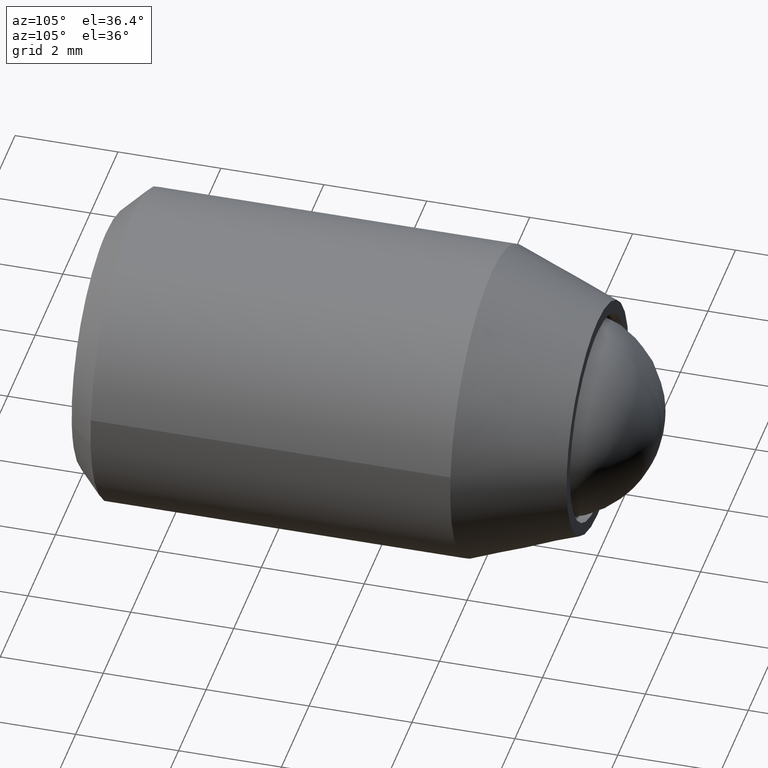
[diagram: clean part render]
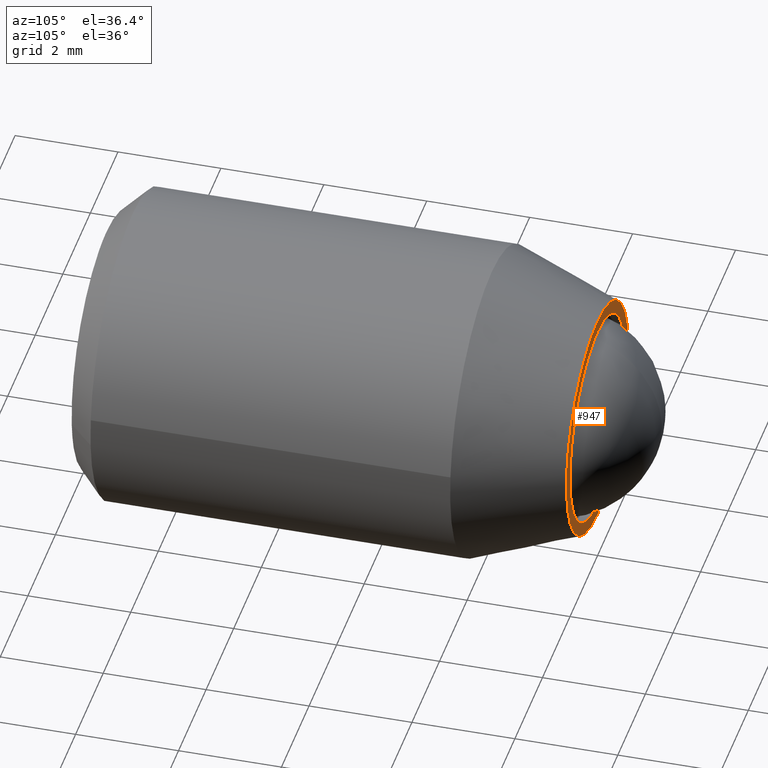
[diagram: same view with one face highlighted and labeled with its STEP entity id]
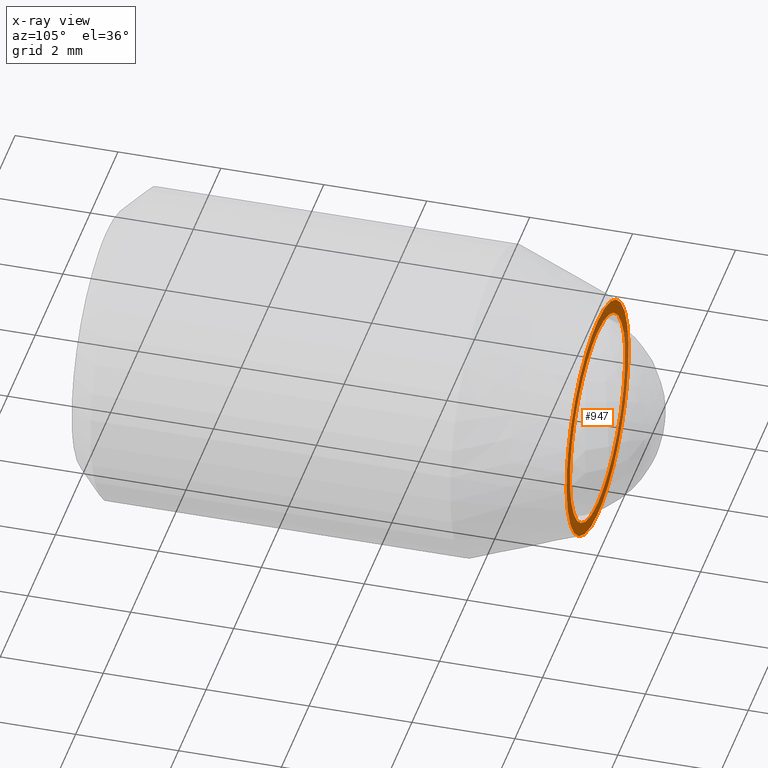
[diagram: x-ray of the same camera — body ghosted, the highlighted face saturated]
A machine part, auxiliary view. The second image highlights one B-rep face of the part: STEP entity #947.
The next image is the same camera in x-ray: the body ghosted, the highlighted face saturated — about 29% of this face is hidden behind the body in this view.
In plain terms, the highlighted face is a freeform B-spline surface patch.
Its self-contained STEP definition (entity closure, byte-faithful):
#104=CARTESIAN_POINT('',(1.996269777641058,-9.020562E-017,-0.122094122987751));
#105=VERTEX_POINT('',#104);
#111=CARTESIAN_POINT('',(0.0,0.0,-2.0));
#112=VERTEX_POINT('',#111);
#113=CARTESIAN_POINT('',(0.0,0.0,-2.0));
#114=CARTESIAN_POINT('',(1.881414925019934,0.0,-2.000000000000000));
#115=CARTESIAN_POINT('',(1.996269777641058,-9.020562E-017,-0.122094122987751));
#123=(BOUNDED_CURVE()B_SPLINE_CURVE(2,(#113,#114,#115),.UNSPECIFIED.,.F.,.U.)B_SPLINE_CURVE_WITH_KNOTS((3,3),(0.500000000000000,0.739333217749817),.UNSPECIFIED.)CURVE()GEOMETRIC_REPRESENTATION_ITEM()RATIONAL_B_SPLINE_CURVE((1.0,0.719603693937101,0.976072589275771))REPRESENTATION_ITEM(''));
#124=EDGE_CURVE('',#112,#105,#123,.T.);
#126=CARTESIAN_POINT('',(-1.986019104141868,-8.518285E-017,0.236068036767671));
#127=VERTEX_POINT('',#126);
#128=CARTESIAN_POINT('',(-1.986019104141868,-8.518285E-017,0.236068036767671));
#129=CARTESIAN_POINT('',(-2.0,0.0,0.118447802185172));
#130=CARTESIAN_POINT('',(-2.0,0.0,0.0));
#131=CARTESIAN_POINT('',(-2.000000000000000,0.0,-2.000000000000000));
#132=CARTESIAN_POINT('',(0.0,0.0,-2.0));
#140=(BOUNDED_CURVE()B_SPLINE_CURVE(2,(#128,#129,#130,#131,#132),.UNSPECIFIED.,.F.,.U.)B_SPLINE_CURVE_WITH_KNOTS((3,2,3),(0.229562547131914,0.250000000000000,0.500000000000000),.UNSPECIFIED.)CURVE()GEOMETRIC_REPRESENTATION_ITEM()RATIONAL_B_SPLINE_CURVE((0.956026898478838,0.976056034580473,1.0,0.707106781186548,1.0))REPRESENTATION_ITEM(''));
#141=EDGE_CURVE('',#127,#112,#140,.T.);
#185=CARTESIAN_POINT('',(0.0,0.0,2.0));
#186=VERTEX_POINT('',#185);
#187=CARTESIAN_POINT('',(0.0,0.0,2.0));
#188=CARTESIAN_POINT('',(-1.776349831111262,0.0,2.000000000000000));
#189=CARTESIAN_POINT('',(-1.986019104141868,-8.518285E-017,0.236068036767672));
#197=(BOUNDED_CURVE()B_SPLINE_CURVE(2,(#187,#188,#189),.UNSPECIFIED.,.F.,.U.)B_SPLINE_CURVE_WITH_KNOTS((3,3),(0.0,0.229562547131914),.UNSPECIFIED.)CURVE()GEOMETRIC_REPRESENTATION_ITEM()RATIONAL_B_SPLINE_CURVE((1.0,0.731050746606075,0.956026898478838))REPRESENTATION_ITEM(''));
#198=EDGE_CURVE('',#186,#127,#197,.T.);
#200=CARTESIAN_POINT('',(1.996269777641058,-9.020562E-017,-0.122094122987751));
#201=CARTESIAN_POINT('',(2.000000000000000,0.0,-0.061104044412081));
#202=CARTESIAN_POINT('',(2.0,0.0,0.0));
#203=CARTESIAN_POINT('',(2.000000000000000,0.0,2.000000000000000));
#204=CARTESIAN_POINT('',(0.0,0.0,2.0));
#212=(BOUNDED_CURVE()B_SPLINE_CURVE(2,(#200,#201,#202,#203,#204),.UNSPECIFIED.,.F.,.U.)B_SPLINE_CURVE_WITH_KNOTS((3,2,3),(0.739333217749817,0.750000000000000,1.0),.UNSPECIFIED.)CURVE()GEOMETRIC_REPRESENTATION_ITEM()RATIONAL_B_SPLINE_CURVE((0.976072589275771,0.987503087249447,1.0,0.707106781186548,1.0))REPRESENTATION_ITEM(''));
#213=EDGE_CURVE('',#105,#186,#212,.T.);
#260=CARTESIAN_POINT('',(-1.824690539183465,-1.269605E-013,-1.316436263635491));
#261=VERTEX_POINT('',#260);
#262=CARTESIAN_POINT('',(0.0,0.0,-2.250000000000001));
#263=VERTEX_POINT('',#262);
#264=CARTESIAN_POINT('',(-1.824690539183464,-1.269605E-013,-1.316436263635491));
#265=CARTESIAN_POINT('',(-1.151164190152913,0.0,-2.250000000000000));
#266=CARTESIAN_POINT('',(0.0,0.0,-2.250000000000001));
#274=(BOUNDED_CURVE()B_SPLINE_CURVE(2,(#264,#265,#266),.UNSPECIFIED.,.F.,.U.)B_SPLINE_CURVE_WITH_KNOTS((3,3),(0.850743050382167,1.0),.UNSPECIFIED.)CURVE()GEOMETRIC_REPRESENTATION_ITEM()RATIONAL_B_SPLINE_CURVE((0.859068214727268,0.825134606384623,1.0))REPRESENTATION_ITEM(''));
#275=EDGE_CURVE('',#261,#263,#274,.T.);
#277=CARTESIAN_POINT('',(0.0,0.0,2.249999999999999));
#278=VERTEX_POINT('',#277);
#279=CARTESIAN_POINT('',(0.0,0.0,-2.250000000000001));
#280=CARTESIAN_POINT('',(2.250000000000000,0.0,-2.250000000000000));
#281=CARTESIAN_POINT('',(2.250000000000000,0.0,-6.765950E-016));
#282=CARTESIAN_POINT('',(2.250000000000000,0.0,2.249999999999999));
#283=CARTESIAN_POINT('',(0.0,0.0,2.249999999999999));
#291=(BOUNDED_CURVE()B_SPLINE_CURVE(2,(#279,#280,#281,#282,#283),.UNSPECIFIED.,.F.,.U.)B_SPLINE_CURVE_WITH_KNOTS((3,2,3),(0.0,0.250000000000000,0.500000000000000),.UNSPECIFIED.)CURVE()GEOMETRIC_REPRESENTATION_ITEM()RATIONAL_B_SPLINE_CURVE((1.0,0.707106781186547,1.0,0.707106781186547,1.0))REPRESENTATION_ITEM(''));
#292=EDGE_CURVE('',#263,#278,#291,.T.);
#294=CARTESIAN_POINT('',(-2.245803296449229,-8.940522E-013,0.137359213958318));
#295=VERTEX_POINT('',#294);
#296=CARTESIAN_POINT('',(0.0,0.0,2.249999999999999));
#297=CARTESIAN_POINT('',(-2.116588650528630,0.0,2.250000000000000));
#298=CARTESIAN_POINT('',(-2.245803296449229,-8.940522E-013,0.137359213958318));
#306=(BOUNDED_CURVE()B_SPLINE_CURVE(2,(#296,#297,#298),.UNSPECIFIED.,.F.,.U.)B_SPLINE_CURVE_WITH_KNOTS((3,3),(0.500000000000000,0.739332962241221),.UNSPECIFIED.)CURVE()GEOMETRIC_REPRESENTATION_ITEM()RATIONAL_B_SPLINE_CURVE((1.0,0.719603993284041,0.976072041671600))REPRESENTATION_ITEM(''));
#307=EDGE_CURVE('',#278,#295,#306,.T.);
#400=CARTESIAN_POINT('',(-2.245803296449229,-8.940522E-013,0.137359213958318));
#401=CARTESIAN_POINT('',(-2.250000000000001,0.0,0.068743717426708));
#402=CARTESIAN_POINT('',(-2.250000000000000,0.0,-6.765950E-016));
#403=CARTESIAN_POINT('',(-2.250000000000000,0.0,-0.726921852027605));
#404=CARTESIAN_POINT('',(-1.824690539183465,-1.269605E-013,-1.316436263635491));
#412=(BOUNDED_CURVE()B_SPLINE_CURVE(2,(#400,#401,#402,#403,#404),.UNSPECIFIED.,.F.,.U.)B_SPLINE_CURVE_WITH_KNOTS((3,2,3),(0.739332962241220,0.750000000000000,0.850743050382166),.UNSPECIFIED.)CURVE()GEOMETRIC_REPRESENTATION_ITEM()RATIONAL_B_SPLINE_CURVE((0.976072041671598,0.987502787902505,1.0,0.881972174801926,0.859068214727269))REPRESENTATION_ITEM(''));
#413=EDGE_CURVE('',#295,#261,#412,.T.);
#930=CARTESIAN_POINT('',(-2.474708163199642,0.0,-2.474774991278128));
#931=CARTESIAN_POINT('',(-2.474708163199642,0.0,2.474775111977531));
#932=CARTESIAN_POINT('',(2.474771932718971,0.0,-2.474774991278128));
#933=CARTESIAN_POINT('',(2.474771932718971,0.0,2.474775111977531));
#934=B_SPLINE_SURFACE_WITH_KNOTS('',1,1,((#930,#932),(#931,#933)),.UNSPECIFIED.,.F.,.F.,.U.,(2,2),(2,2),(0.0,4.949550103255659),(0.0,4.949480095918612),.UNSPECIFIED.);
#935=ORIENTED_EDGE('',*,*,#275,.F.);
#936=ORIENTED_EDGE('',*,*,#413,.F.);
#937=ORIENTED_EDGE('',*,*,#307,.F.);
#938=ORIENTED_EDGE('',*,*,#292,.F.);
#939=EDGE_LOOP('',(#935,#936,#937,#938));
#940=FACE_OUTER_BOUND('',#939,.T.);
#941=ORIENTED_EDGE('',*,*,#124,.T.);
#942=ORIENTED_EDGE('',*,*,#213,.T.);
#943=ORIENTED_EDGE('',*,*,#198,.T.);
#944=ORIENTED_EDGE('',*,*,#141,.T.);
#945=EDGE_LOOP('',(#941,#942,#943,#944));
#946=FACE_BOUND('',#945,.T.);
#947=ADVANCED_FACE('',(#940,#946),#934,.T.);